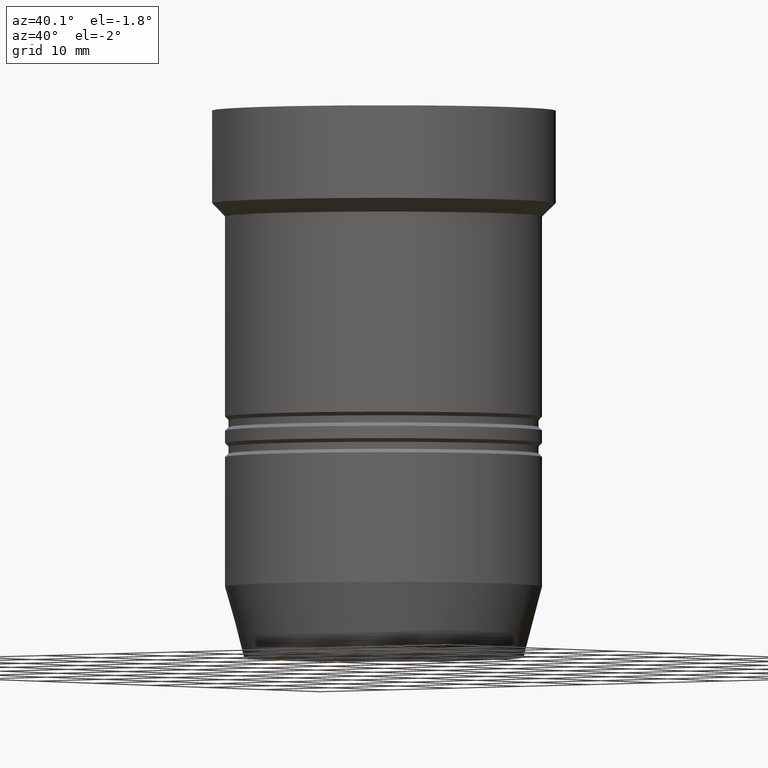
[diagram: clean part render]
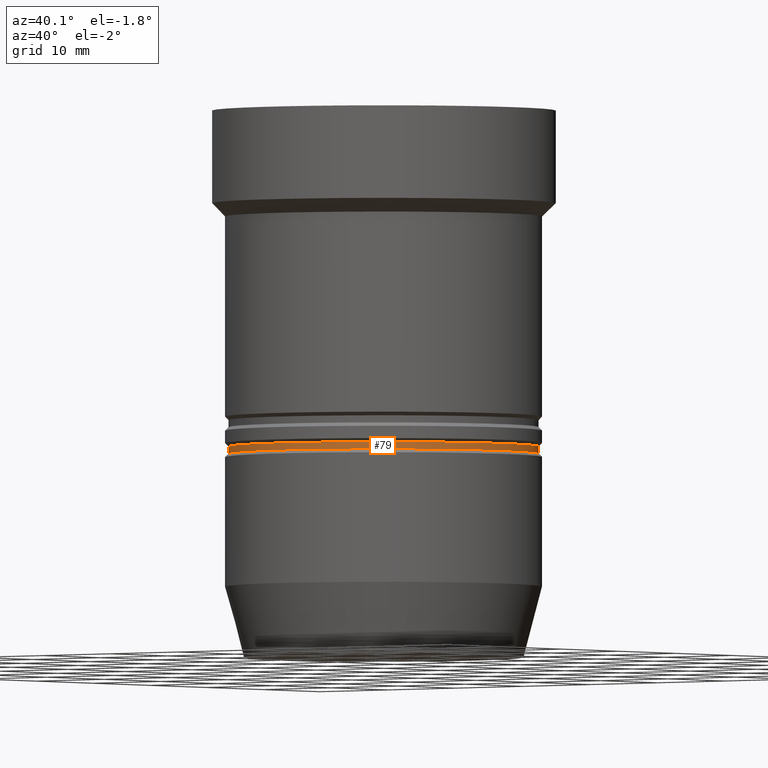
[diagram: same view with one face highlighted and labeled with its STEP entity id]
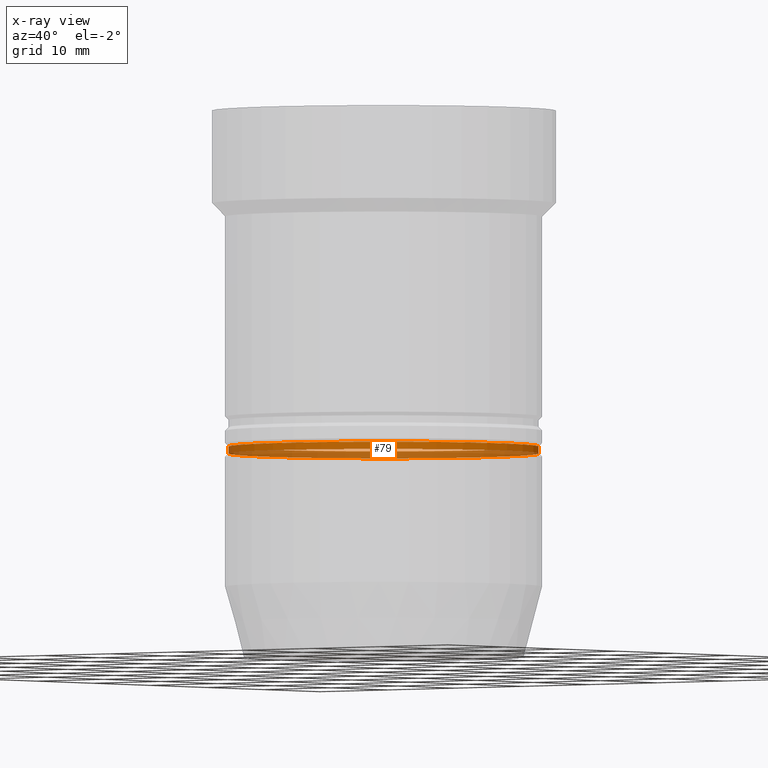
[diagram: x-ray of the same camera — body ghosted, the highlighted face saturated]
A machine part, auxiliary view. The second image highlights one B-rep face of the part: STEP entity #79.
The next image is the same camera in x-ray: the body ghosted, the highlighted face saturated — about 47% of this face is hidden behind the body in this view.
In plain terms, the highlighted cylindrical surface (bore or boss wall) has radius 17.6 mm, axis along (0, 0, -1).
Its self-contained STEP definition (entity closure, byte-faithful):
#79=ADVANCED_FACE('',(#101,#102),#103,.T.);
#101=FACE_BOUND('',#141,.T.);
#102=FACE_BOUND('',#142,.T.);
#103=CYLINDRICAL_SURFACE('',#143,17.6);
#141=EDGE_LOOP('',(#189));
#142=EDGE_LOOP('',(#190));
#143=AXIS2_PLACEMENT_3D('',#191,#192,#193);
#189=ORIENTED_EDGE('',*,*,#242,.F.);
#190=ORIENTED_EDGE('',*,*,#241,.T.);
#191=CARTESIAN_POINT('',(2.35744508835865E-015,4.71489017671731E-015,-38.5));
#192=DIRECTION('',(6.12323399573677E-017,1.22464679914735E-016,-1.0));
#193=DIRECTION('',(-1.23259516440783E-032,1.0,1.22464679914735E-016));
#241=EDGE_CURVE('',#257,#257,#258,.T.);
#242=EDGE_CURVE('',#259,#259,#260,.T.);
#257=VERTEX_POINT('',#283);
#258=CIRCLE('',#284,17.6);
#259=VERTEX_POINT('',#285);
#260=CIRCLE('',#286,17.6);
#283=CARTESIAN_POINT('',(2.3819380243416E-015,17.6,-38.9));
#284=AXIS2_PLACEMENT_3D('',#312,#313,#314);
#285=CARTESIAN_POINT('',(2.33295215237571E-015,17.6,-38.1));
#286=AXIS2_PLACEMENT_3D('',#315,#316,#317);
#312=CARTESIAN_POINT('',(2.3819380243416E-015,4.7638760486832E-015,-38.9));
#313=DIRECTION('',(-6.12323399573677E-017,-1.22464679914735E-016,1.0));
#314=DIRECTION('',(-1.23259516440783E-032,1.0,1.22464679914735E-016));
#315=CARTESIAN_POINT('',(2.33295215237571E-015,4.66590430475142E-015,-38.1));
#316=DIRECTION('',(-6.12323399573677E-017,-1.22464679914735E-016,1.0));
#317=DIRECTION('',(-1.23259516440783E-032,1.0,1.22464679914735E-016));